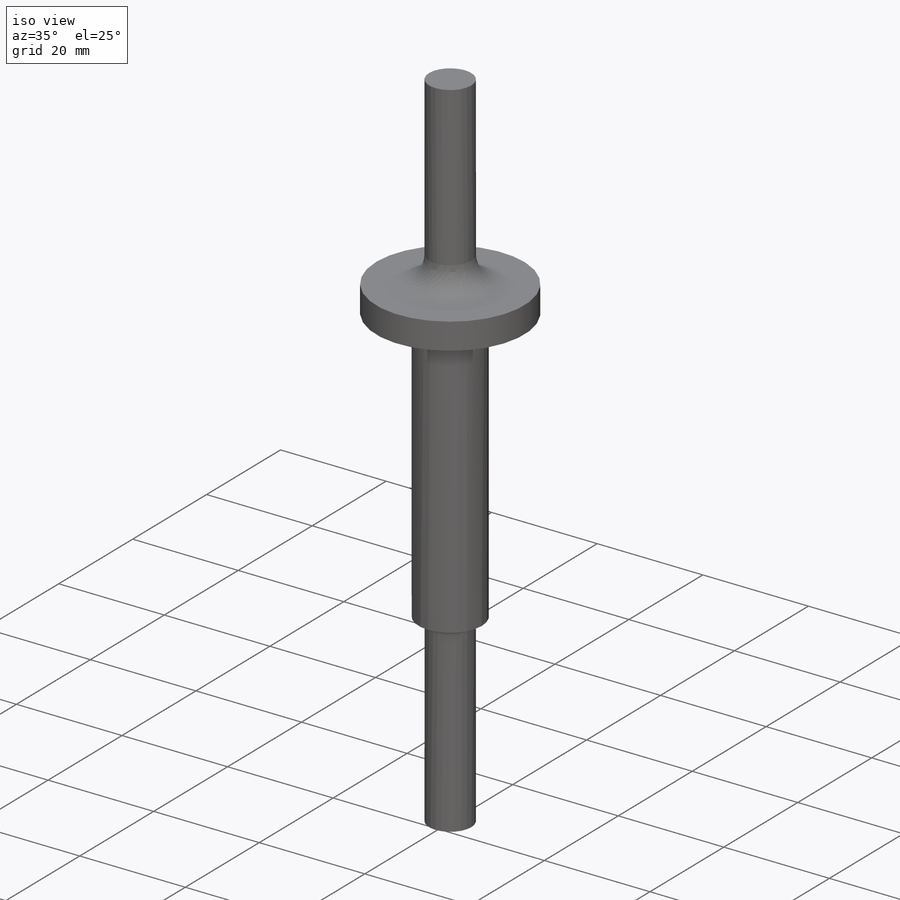
[diagram: iso view]
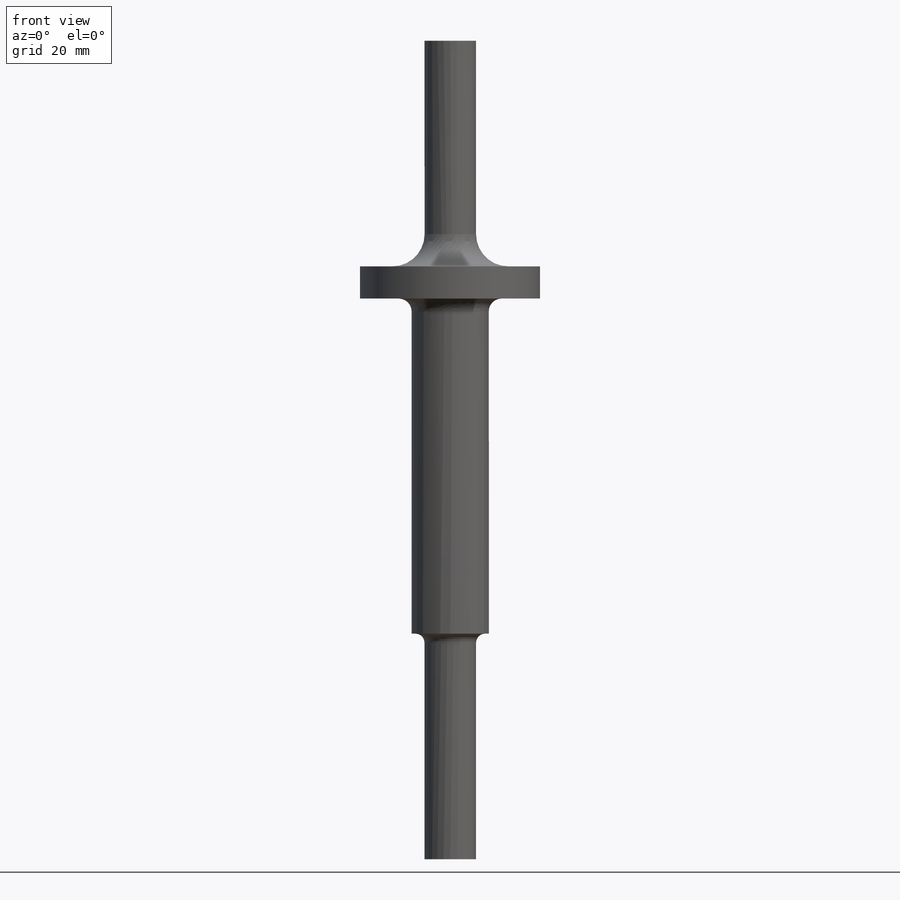
[diagram: front view]
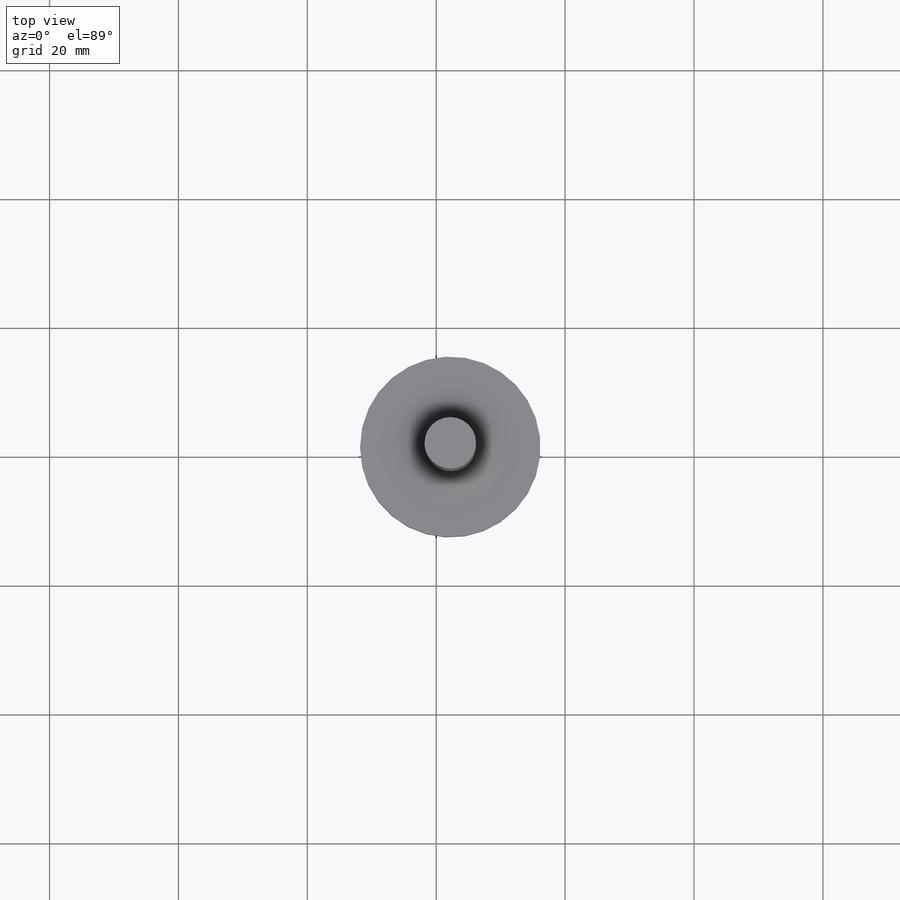
[diagram: top view]
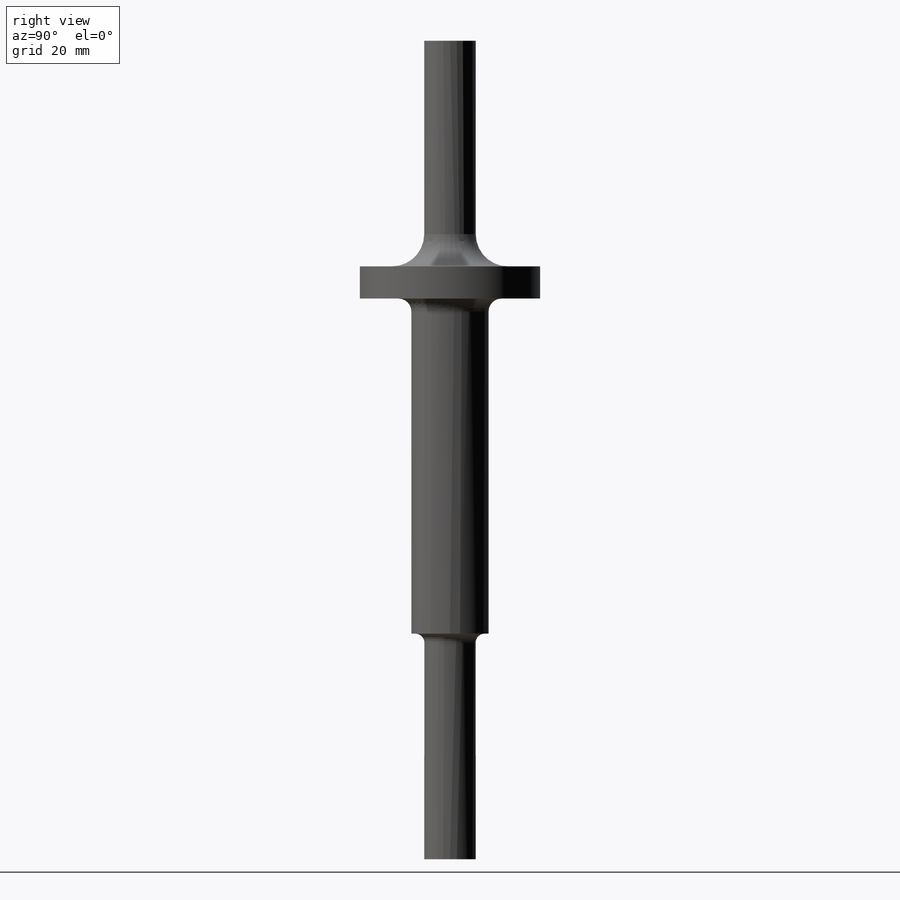
[diagram: right view]
SOLIDWORKS PART (.sldprt)
format: sldprt  version: not decoded by parser v0  size: 135,168 bytes
history: native  units: mm
features: fillet x3, material x1, sketch x1, revolve x1 (+13 scaffold rows collapsed)
feature tree (19):
  scaffold x13  (default folders/planes/origin — collapsed)
  material  "Material <not specified>"
  sketch  "Sketch1"  dims[c1.D1=35.0mm c1.D2=5.0mm c1.D3=52.0mm c1.D4=35.0mm c1.D5=10.0mm c1.D6=4.0mm c2.D5=10.0mm c2.D7=8.0mm]
  revolve  "Revolve1"  Angle=360deg
  fillet  "Fillet1"  Radius=5mm
  fillet  "Fillet2"  Radius=2mm
  fillet  "Fillet3"  Radius=2mm
decode coverage: 5 of 5 modeling features carry decoded parameters
note: suppression state not decoded; provenance and decode notes live in map.json
